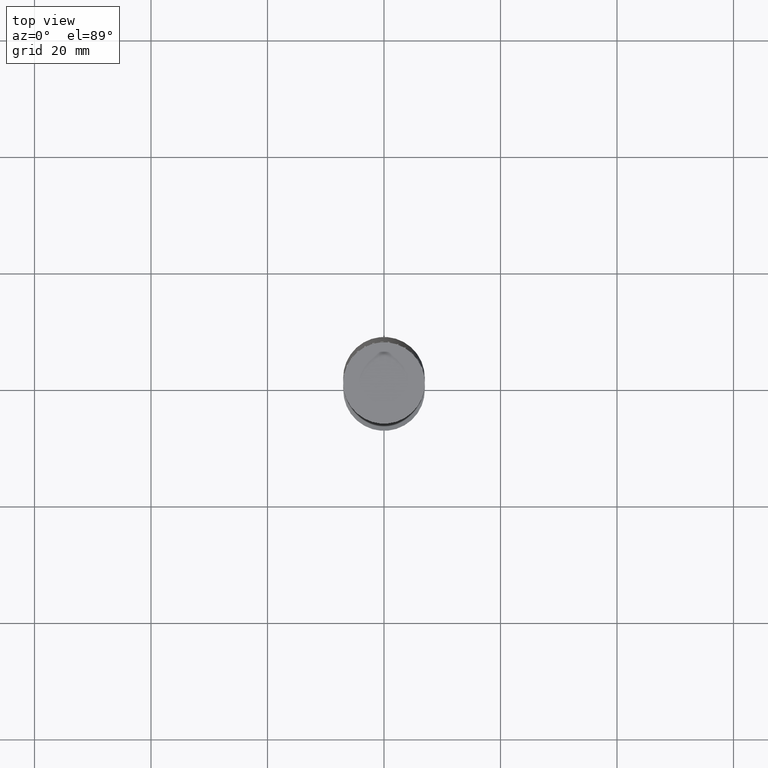
[diagram: clean part render]
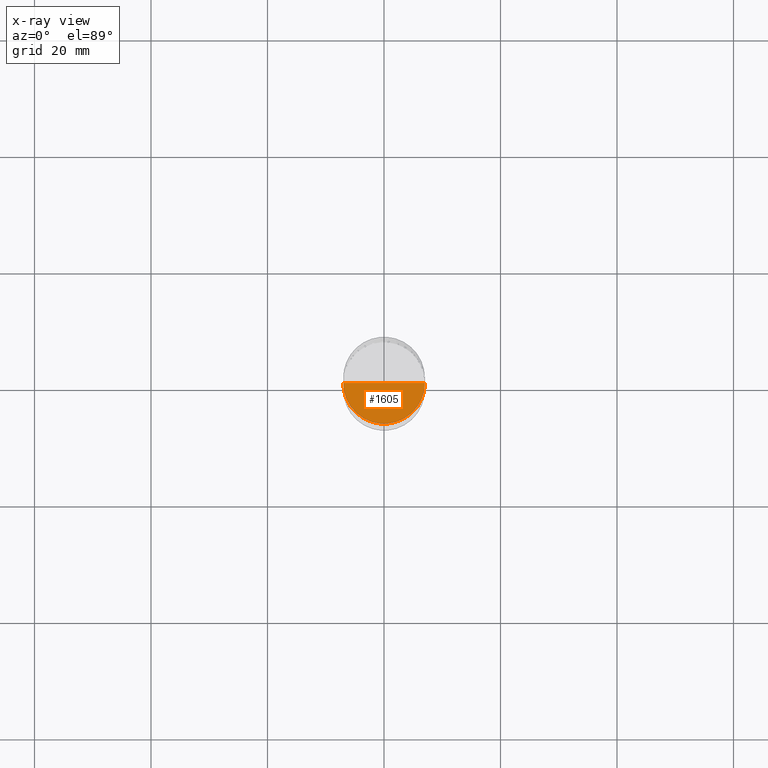
[diagram: x-ray — body ghosted, one internal face saturated and labeled with its STEP entity id]
A machine part, top view, then the same camera in x-ray: the body is ghosted and one INTERNAL B-rep face — a face not visible from any outside direction — is saturated and labeled: STEP entity #1605.
In plain terms, the highlighted face is a freeform B-spline surface patch.
Its self-contained STEP definition (entity closure, byte-faithful):
#1452=CARTESIAN_POINT('',(7.0,0.0,-7.0));
#1456=CARTESIAN_POINT('',(-7.0,0.0,-7.0));
#1457=CARTESIAN_POINT('',(0.0,0.0,-7.0));
#1461=CARTESIAN_POINT('',(-7.0,-7.0,-7.0));
#1462=CARTESIAN_POINT('',(0.0,-7.0,-7.0));
#1463=CARTESIAN_POINT('',(7.0,-7.0,-7.0));
#1590=(
BOUNDED_SURFACE()
B_SPLINE_SURFACE(1,2,(
(#1456,#1461,#1462,#1463,#1452),
(#1457,#1457,#1457,#1457,#1457)
), .UNSPECIFIED.,.F.,.F.,.F.)
B_SPLINE_SURFACE_WITH_KNOTS((2,2),(3,2,3),(
0.0,1.0),(
0.0,0.5,1.0), .UNSPECIFIED.)
GEOMETRIC_REPRESENTATION_ITEM()
RATIONAL_B_SPLINE_SURFACE(((1.0,0.707106781187,1.0,0.707106781187,1.0),
(1.0,0.707106781187,1.0,0.707106781187,1.0)
))
REPRESENTATION_ITEM('')
SURFACE()
);
#1591=(
BOUNDED_CURVE()
B_SPLINE_CURVE(2,(#1452,#1463,#1462,#1461,#1456),.UNSPECIFIED.,.F.,.F.)
B_SPLINE_CURVE_WITH_KNOTS((3,2,3),
(0.0,0.5,1.0),.UNSPECIFIED.)
CURVE()
GEOMETRIC_REPRESENTATION_ITEM()
RATIONAL_B_SPLINE_CURVE((1.0,0.707106781187,1.0,0.707106781187,1.0))
REPRESENTATION_ITEM('')
);
#1592=(
BOUNDED_CURVE()
B_SPLINE_CURVE(1,(#1456,#1457),.UNSPECIFIED.,.F.,.F.)
B_SPLINE_CURVE_WITH_KNOTS((2,2),
(0.0,1.0),.UNSPECIFIED.)
CURVE()
GEOMETRIC_REPRESENTATION_ITEM()
RATIONAL_B_SPLINE_CURVE((1.0,1.0))
REPRESENTATION_ITEM('')
);
#1593=(
BOUNDED_CURVE()
B_SPLINE_CURVE(1,(#1457,#1452),.UNSPECIFIED.,.F.,.F.)
B_SPLINE_CURVE_WITH_KNOTS((2,2),
(0.0,1.0),.UNSPECIFIED.)
CURVE()
GEOMETRIC_REPRESENTATION_ITEM()
RATIONAL_B_SPLINE_CURVE((1.0,1.0))
REPRESENTATION_ITEM('')
);
#1594=VERTEX_POINT('',#1452);
#1595=VERTEX_POINT('',#1456);
#1596=VERTEX_POINT('',#1457);
#1597=EDGE_CURVE('',#1594,#1595,#1591,.T.);
#1598=EDGE_CURVE('',#1595,#1596,#1592,.T.);
#1599=EDGE_CURVE('',#1596,#1594,#1593,.T.);
#1600=ORIENTED_EDGE('',*,*,#1597,.T.);
#1601=ORIENTED_EDGE('',*,*,#1598,.T.);
#1602=ORIENTED_EDGE('',*,*,#1599,.T.);
#1603=EDGE_LOOP('',(#1600,#1601,#1602));
#1604=FACE_OUTER_BOUND('',#1603,.T.);
#1605=ADVANCED_FACE('',(#1604),#1590,.T.);